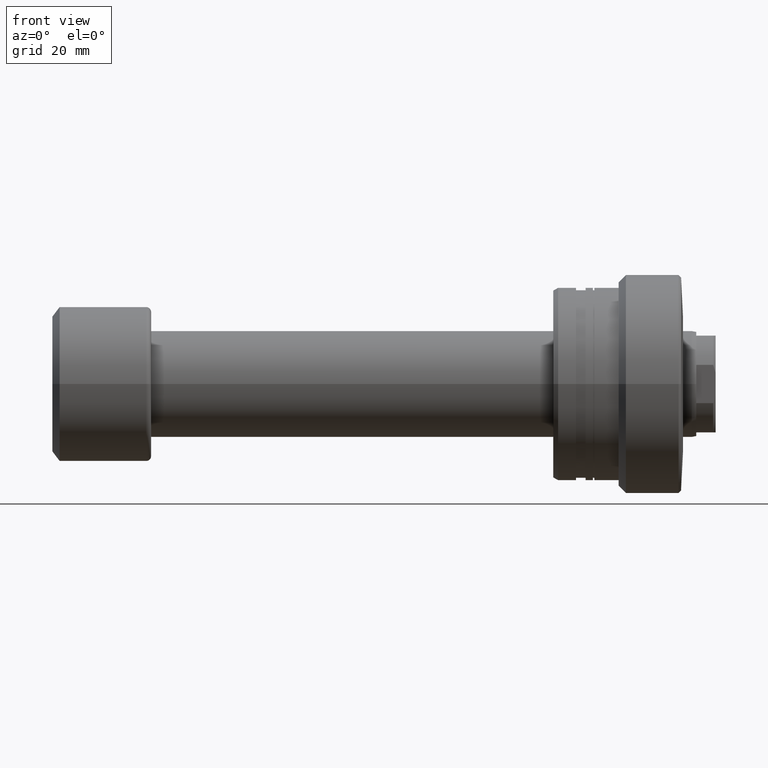
[diagram: clean part render]
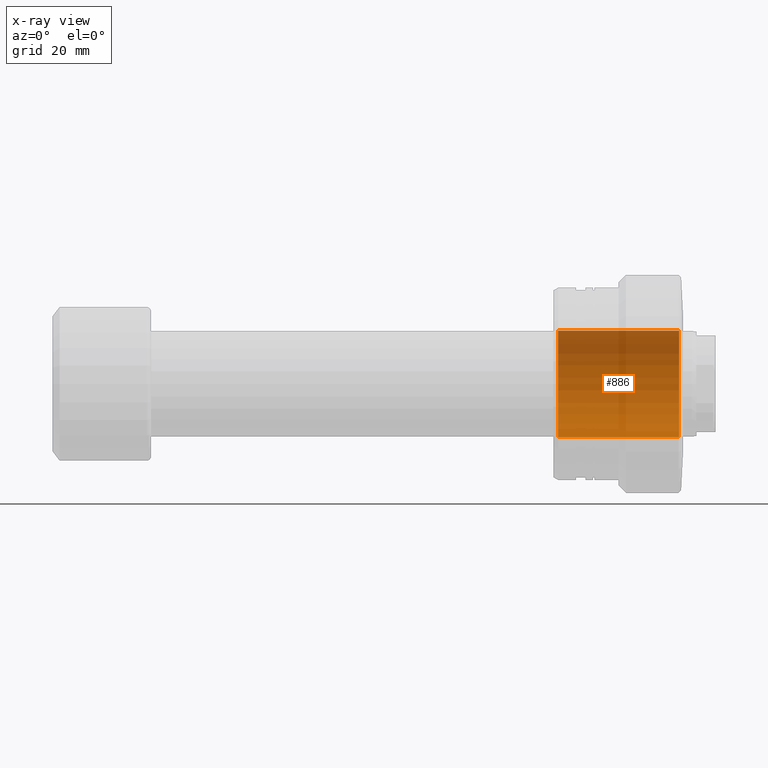
[diagram: x-ray — body ghosted, one internal face saturated and labeled with its STEP entity id]
A machine part, front view, then the same camera in x-ray: the body is ghosted and one INTERNAL B-rep face — a face not visible from any outside direction — is saturated and labeled: STEP entity #886.
In plain terms, the highlighted cylindrical surface (partial cylindrical patch) has radius 11 mm, axis along (1, 0, 0).
Its self-contained STEP definition (entity closure, byte-faithful):
#62 = CARTESIAN_POINT ( 'NONE',  ( -1.500000000000000000, 0.000000000000000000, -11.00000000000000000 ) ) ;
#145 = CIRCLE ( 'NONE', #228, 11.00000000000000000 ) ;
#228 = AXIS2_PLACEMENT_3D ( 'NONE', #1299, #1312, #1088 ) ;
#295 = LINE ( 'NONE', #2181, #627 ) ;
#354 = VECTOR ( 'NONE', #2139, 1000.000000000000000 ) ;
#573 = FACE_OUTER_BOUND ( 'NONE', #1892, .T. ) ;
#578 = ORIENTED_EDGE ( 'NONE', *, *, #812, .T. ) ;
#582 = VERTEX_POINT ( 'NONE', #62 ) ;
#627 = VECTOR ( 'NONE', #2381, 1000.000000000000000 ) ;
#641 = CARTESIAN_POINT ( 'NONE',  ( -58.61269837220807233, 1.347111479062088405E-15, 11.00000000000000000 ) ) ;
#800 = ORIENTED_EDGE ( 'NONE', *, *, #1985, .T. ) ;
#812 = EDGE_CURVE ( 'NONE', #1516, #582, #295, .T. ) ;
#886 = ADVANCED_FACE ( 'NONE', ( #573 ), #1125, .F. ) ;
#954 = DIRECTION ( 'NONE',  ( 0.000000000000000000, 0.000000000000000000, -1.000000000000000000 ) ) ;
#1088 = DIRECTION ( 'NONE',  ( 0.000000000000000000, 0.000000000000000000, 1.000000000000000000 ) ) ;
#1118 = CARTESIAN_POINT ( 'NONE',  ( -26.49999999999999645, 0.000000000000000000, -11.00000000000000000 ) ) ;
#1125 = CYLINDRICAL_SURFACE ( 'NONE', #1386, 11.00000000000000000 ) ;
#1299 = CARTESIAN_POINT ( 'NONE',  ( -26.49999999999999645, 0.000000000000000000, 0.000000000000000000 ) ) ;
#1304 = CIRCLE ( 'NONE', #1655, 11.00000000000000000 ) ;
#1308 = ORIENTED_EDGE ( 'NONE', *, *, #1517, .T. ) ;
#1312 = DIRECTION ( 'NONE',  ( -1.000000000000000000, -0.000000000000000000, -0.000000000000000000 ) ) ;
#1386 = AXIS2_PLACEMENT_3D ( 'NONE', #2246, #1713, #954 ) ;
#1506 = VERTEX_POINT ( 'NONE', #1857 ) ;
#1516 = VERTEX_POINT ( 'NONE', #1118 ) ;
#1517 = EDGE_CURVE ( 'NONE', #582, #1506, #1304, .T. ) ;
#1655 = AXIS2_PLACEMENT_3D ( 'NONE', #1694, #1867, #2429 ) ;
#1694 = CARTESIAN_POINT ( 'NONE',  ( -1.500000000000000000, 0.000000000000000000, 0.000000000000000000 ) ) ;
#1713 = DIRECTION ( 'NONE',  ( 1.000000000000000000, -0.000000000000000000, -0.000000000000000000 ) ) ;
#1857 = CARTESIAN_POINT ( 'NONE',  ( -1.500000000000000000, 1.347111479062088405E-15, 11.00000000000000000 ) ) ;
#1867 = DIRECTION ( 'NONE',  ( 1.000000000000000000, 0.000000000000000000, 0.000000000000000000 ) ) ;
#1869 = ORIENTED_EDGE ( 'NONE', *, *, #2266, .F. ) ;
#1892 = EDGE_LOOP ( 'NONE', ( #1869, #800, #578, #1308 ) ) ;
#1984 = LINE ( 'NONE', #641, #354 ) ;
#1985 = EDGE_CURVE ( 'NONE', #2040, #1516, #145, .T. ) ;
#2040 = VERTEX_POINT ( 'NONE', #2440 ) ;
#2139 = DIRECTION ( 'NONE',  ( 1.000000000000000000, -0.000000000000000000, -0.000000000000000000 ) ) ;
#2181 = CARTESIAN_POINT ( 'NONE',  ( -58.61269837220807233, 0.000000000000000000, -11.00000000000000000 ) ) ;
#2246 = CARTESIAN_POINT ( 'NONE',  ( -58.61269837220807233, 0.000000000000000000, 0.000000000000000000 ) ) ;
#2266 = EDGE_CURVE ( 'NONE', #2040, #1506, #1984, .T. ) ;
#2381 = DIRECTION ( 'NONE',  ( 1.000000000000000000, -0.000000000000000000, -0.000000000000000000 ) ) ;
#2429 = DIRECTION ( 'NONE',  ( 0.000000000000000000, 0.000000000000000000, -1.000000000000000000 ) ) ;
#2440 = CARTESIAN_POINT ( 'NONE',  ( -26.49999999999999645, 1.347111479062088405E-15, 11.00000000000000000 ) ) ;